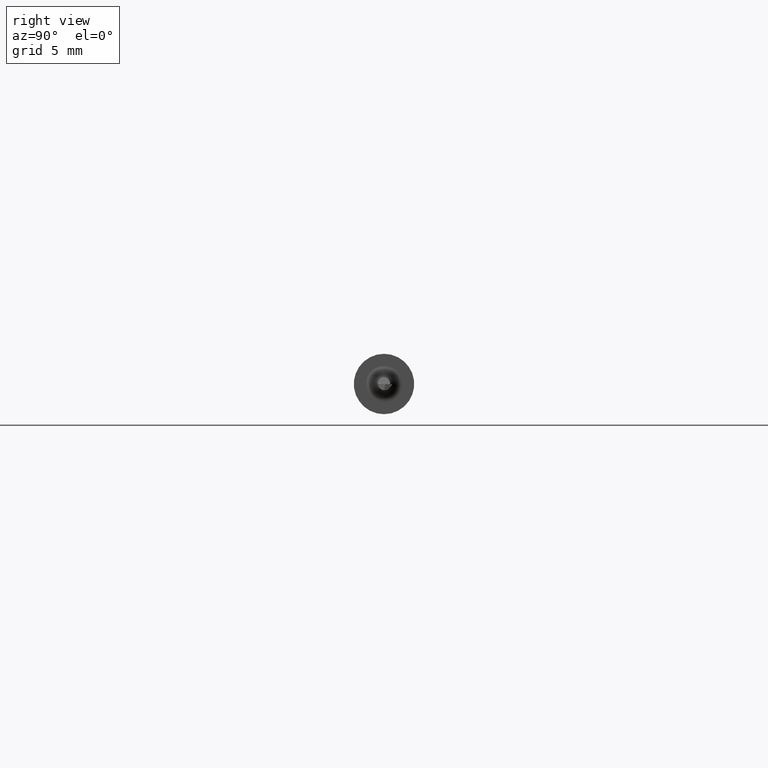
[diagram: clean part render]
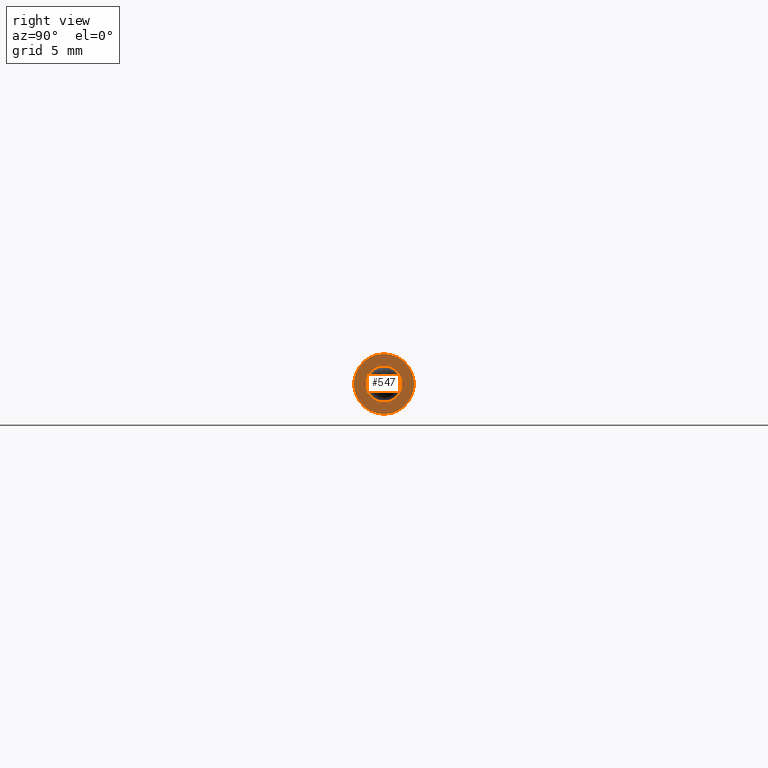
[diagram: same view with one face highlighted and labeled with its STEP entity id]
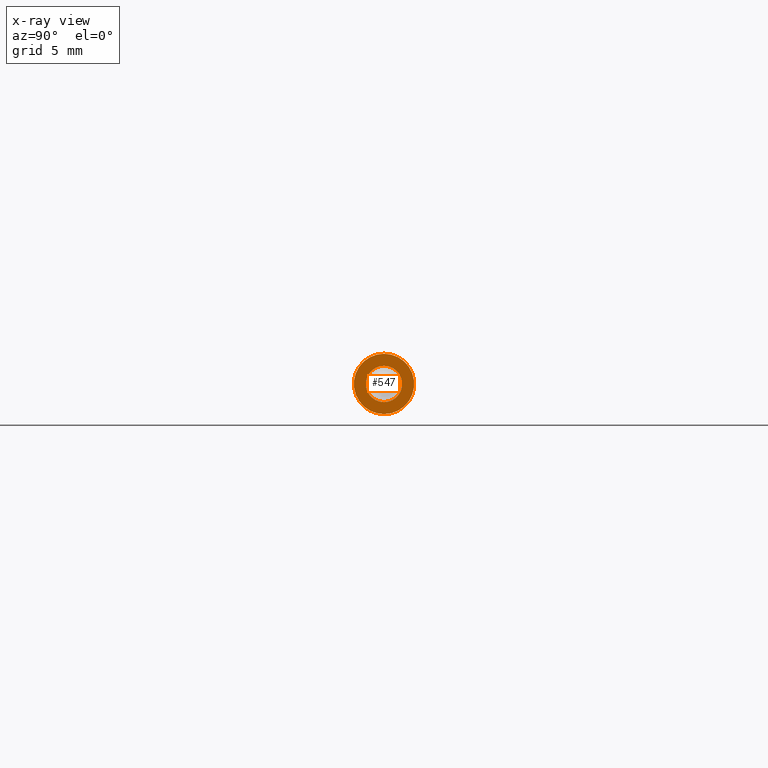
[diagram: x-ray of the same camera — body ghosted, the highlighted face saturated]
A machine part, right view. The second image highlights one B-rep face of the part: STEP entity #547.
The next image is the same camera in x-ray: the body ghosted, the highlighted face saturated — about 0% of this face is hidden behind the body in this view.
In plain terms, the highlighted planar face has unit normal (1, 0, 0).
Its self-contained STEP definition (entity closure, byte-faithful):
#15 = CARTESIAN_POINT ( 'NONE',  ( 1.320000000000000506, 4.592425496802573602E-18, -0.03749999999999999861 ) ) ;
#18 = CARTESIAN_POINT ( 'NONE',  ( 1.320000000000000506, 0.000000000000000000, 0.000000000000000000 ) ) ;
#60 = CARTESIAN_POINT ( 'NONE',  ( 1.320000000000000506, 0.1123499999999999638, 0.000000000000000000 ) ) ;
#67 = EDGE_CURVE ( 'NONE', #533, #446, #325, .T. ) ;
#74 = CIRCLE ( 'NONE', #275, 0.03749999999999999861 ) ;
#78 = VERTEX_POINT ( 'NONE', #98 ) ;
#82 = DIRECTION ( 'NONE',  ( 0.000000000000000000, 0.000000000000000000, 1.000000000000000000 ) ) ;
#85 = DIRECTION ( 'NONE',  ( -1.000000000000000000, -0.000000000000000000, -0.000000000000000000 ) ) ;
#98 = CARTESIAN_POINT ( 'NONE',  ( 1.320000000000000506, 0.000000000000000000, 0.06234999999999997489 ) ) ;
#121 = EDGE_CURVE ( 'NONE', #446, #533, #74, .T. ) ;
#136 = AXIS2_PLACEMENT_3D ( 'NONE', #18, #448, #206 ) ;
#140 = VERTEX_POINT ( 'NONE', #220 ) ;
#142 = EDGE_LOOP ( 'NONE', ( #469, #296 ) ) ;
#153 = CARTESIAN_POINT ( 'NONE',  ( 1.320000000000000506, 0.000000000000000000, 0.000000000000000000 ) ) ;
#187 = FACE_OUTER_BOUND ( 'NONE', #363, .T. ) ;
#206 = DIRECTION ( 'NONE',  ( 0.000000000000000000, 0.000000000000000000, -1.000000000000000000 ) ) ;
#220 = CARTESIAN_POINT ( 'NONE',  ( 1.320000000000000506, 7.635672792683743590E-18, -0.06234999999999997489 ) ) ;
#275 = AXIS2_PLACEMENT_3D ( 'NONE', #153, #85, #82 ) ;
#296 = ORIENTED_EDGE ( 'NONE', *, *, #121, .T. ) ;
#308 = DIRECTION ( 'NONE',  ( 1.000000000000000000, 0.000000000000000000, 0.000000000000000000 ) ) ;
#325 = CIRCLE ( 'NONE', #606, 0.03749999999999999861 ) ;
#363 = EDGE_LOOP ( 'NONE', ( #522, #778 ) ) ;
#373 = PLANE ( 'NONE',  #709 ) ;
#408 = DIRECTION ( 'NONE',  ( -1.000000000000000000, -0.000000000000000000, -0.000000000000000000 ) ) ;
#433 = DIRECTION ( 'NONE',  ( 0.000000000000000000, 0.000000000000000000, -1.000000000000000000 ) ) ;
#446 = VERTEX_POINT ( 'NONE', #15 ) ;
#448 = DIRECTION ( 'NONE',  ( 1.000000000000000000, 0.000000000000000000, 0.000000000000000000 ) ) ;
#461 = AXIS2_PLACEMENT_3D ( 'NONE', #545, #494, #433 ) ;
#466 = EDGE_CURVE ( 'NONE', #140, #78, #652, .T. ) ;
#469 = ORIENTED_EDGE ( 'NONE', *, *, #67, .T. ) ;
#494 = DIRECTION ( 'NONE',  ( 1.000000000000000000, 0.000000000000000000, 0.000000000000000000 ) ) ;
#517 = EDGE_CURVE ( 'NONE', #78, #140, #528, .T. ) ;
#522 = ORIENTED_EDGE ( 'NONE', *, *, #517, .T. ) ;
#528 = CIRCLE ( 'NONE', #461, 0.06234999999999997489 ) ;
#533 = VERTEX_POINT ( 'NONE', #605 ) ;
#542 = DIRECTION ( 'NONE',  ( 0.000000000000000000, 0.000000000000000000, -1.000000000000000000 ) ) ;
#545 = CARTESIAN_POINT ( 'NONE',  ( 1.320000000000000506, 0.000000000000000000, 0.000000000000000000 ) ) ;
#547 = ADVANCED_FACE ( 'NONE', ( #724, #187 ), #373, .T. ) ;
#574 = DIRECTION ( 'NONE',  ( 0.000000000000000000, 0.000000000000000000, 1.000000000000000000 ) ) ;
#605 = CARTESIAN_POINT ( 'NONE',  ( 1.320000000000000506, 0.000000000000000000, 0.03749999999999999861 ) ) ;
#606 = AXIS2_PLACEMENT_3D ( 'NONE', #672, #408, #574 ) ;
#652 = CIRCLE ( 'NONE', #136, 0.06234999999999997489 ) ;
#672 = CARTESIAN_POINT ( 'NONE',  ( 1.320000000000000506, 0.000000000000000000, 0.000000000000000000 ) ) ;
#709 = AXIS2_PLACEMENT_3D ( 'NONE', #60, #308, #542 ) ;
#724 = FACE_BOUND ( 'NONE', #142, .T. ) ;
#778 = ORIENTED_EDGE ( 'NONE', *, *, #466, .T. ) ;